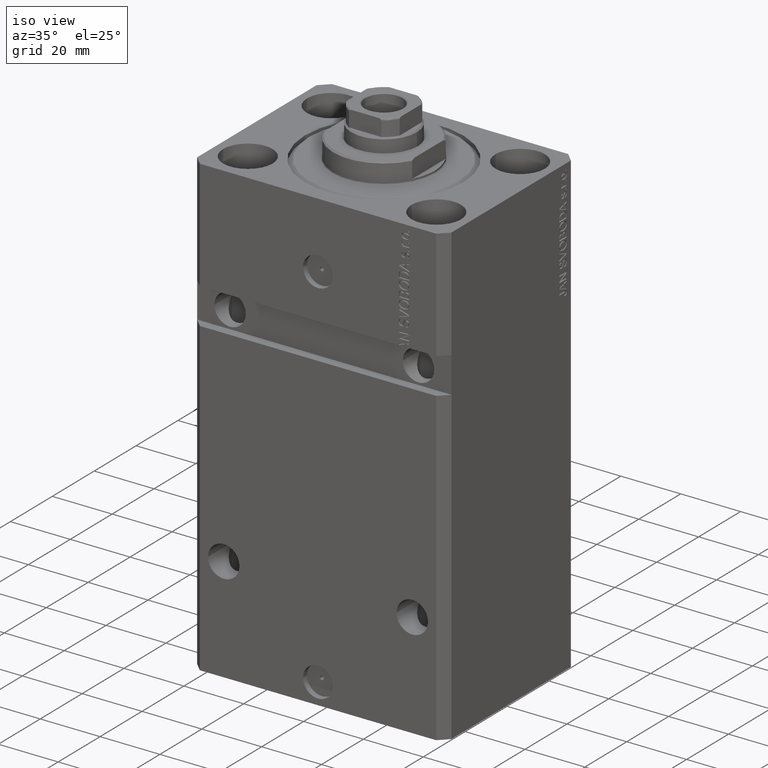
[diagram: clean part render]
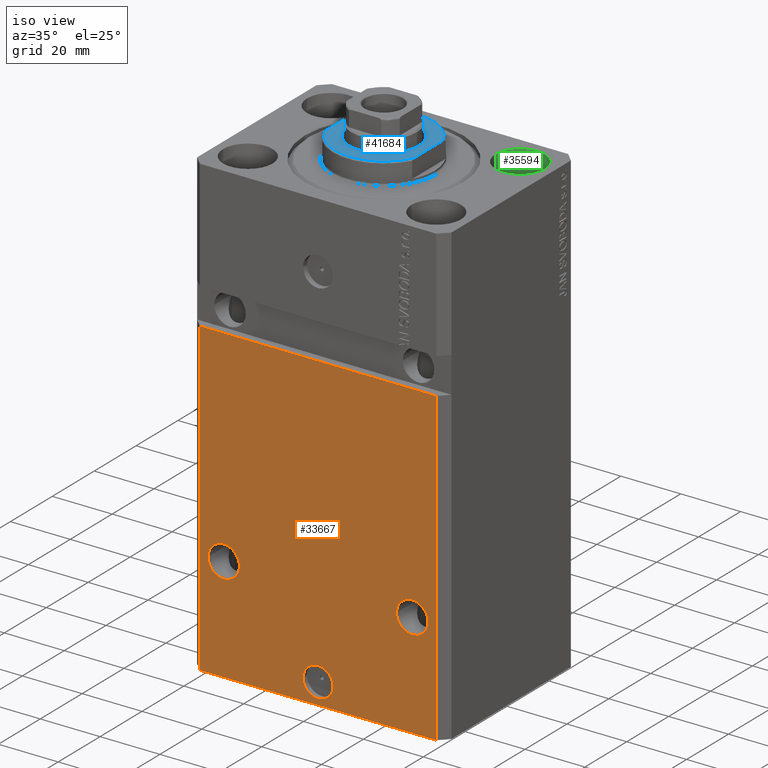
[diagram: same view with three faces highlighted in distinct colors, each labeled with its STEP entity id]
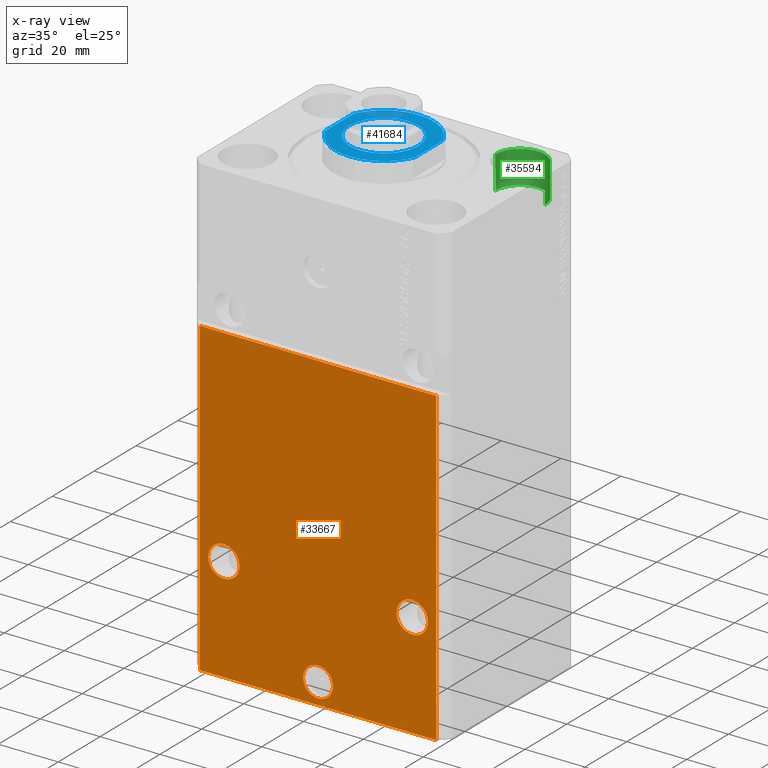
[diagram: x-ray of the same camera — body ghosted, the three highlighted faces saturated]
A machine part, iso view with three faces highlighted in distinct colors.
The next image is the same camera in x-ray (body ghosted, the three faces saturated) — at least one of them is partly hidden behind the body in this view.
Their STEP definitions:

[orange] entity #33667 — the highlighted planar face has unit normal (0, -1, 0).
#100 = CARTESIAN_POINT ( 'NONE',  ( 36.75000000000001421, -31.49999999999999289, -118.0000000000000000 ) ) ;
#493 = VECTOR ( 'NONE', #27653, 1000.000000000000000 ) ;
#895 = EDGE_CURVE ( 'NONE', #39324, #39954, #1374, .T. ) ;
#1374 = CIRCLE ( 'NONE', #35753, 5.249999999999997335 ) ;
#1445 = CARTESIAN_POINT ( 'NONE',  ( 5.000000000000006217, -31.50000000000000000, -146.0000000000000000 ) ) ;
#2423 = DIRECTION ( 'NONE',  ( 1.000000000000000000, 0.000000000000000000, 0.000000000000000000 ) ) ;
#3077 = EDGE_CURVE ( 'NONE', #7344, #43529, #28497, .T. ) ;
#3609 = ORIENTED_EDGE ( 'NONE', *, *, #17200, .F. ) ;
#4207 = DIRECTION ( 'NONE',  ( 1.000000000000000000, 0.000000000000000000, 0.000000000000000000 ) ) ;
#5146 = EDGE_CURVE ( 'NONE', #19466, #10471, #19556, .T. ) ;
#5259 = CARTESIAN_POINT ( 'NONE',  ( -31.50000000000001421, -31.50000000000000711, -118.0000000000000000 ) ) ;
#6255 = CIRCLE ( 'NONE', #8458, 5.000000000000006217 ) ;
#6372 = EDGE_CURVE ( 'NONE', #43529, #7344, #6255, .T. ) ;
#6885 = CIRCLE ( 'NONE', #20069, 5.249999999999997335 ) ;
#7344 = VERTEX_POINT ( 'NONE', #1445 ) ;
#8259 = DIRECTION ( 'NONE',  ( 0.000000000000000000, -0.000000000000000000, -1.000000000000000000 ) ) ;
#8458 = AXIS2_PLACEMENT_3D ( 'NONE', #34861, #14435, #41743 ) ;
#9454 = CARTESIAN_POINT ( 'NONE',  ( -36.75000000000001421, -31.50000000000000711, -118.0000000000000000 ) ) ;
#9516 = CARTESIAN_POINT ( 'NONE',  ( 31.50000000000001421, -31.49999999999999289, -118.0000000000000000 ) ) ;
#9879 = VECTOR ( 'NONE', #40429, 1000.000000000000000 ) ;
#10471 = VERTEX_POINT ( 'NONE', #16000 ) ;
#10872 = LINE ( 'NONE', #28534, #493 ) ;
#11579 = AXIS2_PLACEMENT_3D ( 'NONE', #5259, #33226, #36657 ) ;
#12239 = VECTOR ( 'NONE', #43097, 1000.000000000000000 ) ;
#12425 = CIRCLE ( 'NONE', #21962, 5.249999999999997335 ) ;
#12597 = EDGE_LOOP ( 'NONE', ( #43794, #36372, #17269, #25126 ) ) ;
#12731 = DIRECTION ( 'NONE',  ( 1.000000000000000000, 0.000000000000000000, 0.000000000000000000 ) ) ;
#13061 = EDGE_LOOP ( 'NONE', ( #3609, #34264 ) ) ;
#13882 = EDGE_CURVE ( 'NONE', #15201, #10471, #10872, .T. ) ;
#14339 = CARTESIAN_POINT ( 'NONE',  ( 39.50000000000000711, -31.50000000000000000, -153.0000000000000000 ) ) ;
#14435 = DIRECTION ( 'NONE',  ( 1.176083712526788232E-16, -1.000000000000000000, 0.000000000000000000 ) ) ;
#14650 = EDGE_CURVE ( 'NONE', #35724, #15201, #25887, .T. ) ;
#15201 = VERTEX_POINT ( 'NONE', #40490 ) ;
#15221 = EDGE_CURVE ( 'NONE', #35724, #19466, #44167, .T. ) ;
#15249 = CIRCLE ( 'NONE', #11579, 5.249999999999997335 ) ;
#15271 = EDGE_LOOP ( 'NONE', ( #33795, #22794 ) ) ;
#15515 = DIRECTION ( 'NONE',  ( 1.176083712526788232E-16, -1.000000000000000000, 0.000000000000000000 ) ) ;
#15809 = CARTESIAN_POINT ( 'NONE',  ( -39.50000000000000711, -31.50000000000000000, -153.0000000000000000 ) ) ;
#16000 = CARTESIAN_POINT ( 'NONE',  ( 39.50000000000000000, -31.49999999999999289, -48.99999999999997868 ) ) ;
#16259 = FACE_BOUND ( 'NONE', #15271, .T. ) ;
#17200 = EDGE_CURVE ( 'NONE', #17361, #33575, #15249, .T. ) ;
#17269 = ORIENTED_EDGE ( 'NONE', *, *, #15221, .T. ) ;
#17361 = VERTEX_POINT ( 'NONE', #18446 ) ;
#18446 = CARTESIAN_POINT ( 'NONE',  ( -26.25000000000001776, -31.50000000000000711, -118.0000000000000000 ) ) ;
#18713 = CARTESIAN_POINT ( 'NONE',  ( 26.25000000000001776, -31.49999999999999289, -118.0000000000000000 ) ) ;
#18991 = CARTESIAN_POINT ( 'NONE',  ( -39.50000000000000711, -31.50000000000000000, -153.0000000000000000 ) ) ;
#19466 = VERTEX_POINT ( 'NONE', #14339 ) ;
#19556 = LINE ( 'NONE', #34229, #9879 ) ;
#20069 = AXIS2_PLACEMENT_3D ( 'NONE', #9516, #26735, #2423 ) ;
#20374 = CARTESIAN_POINT ( 'NONE',  ( -39.50000000000000711, -31.50000000000000000, -153.0000000000000000 ) ) ;
#21849 = CARTESIAN_POINT ( 'NONE',  ( 0.000000000000000000, -31.50000000000000000, -146.0000000000000000 ) ) ;
#21962 = AXIS2_PLACEMENT_3D ( 'NONE', #44159, #37710, #26960 ) ;
#22067 = EDGE_CURVE ( 'NONE', #33575, #17361, #12425, .T. ) ;
#22794 = ORIENTED_EDGE ( 'NONE', *, *, #6372, .F. ) ;
#22907 = FACE_BOUND ( 'NONE', #13061, .T. ) ;
#25126 = ORIENTED_EDGE ( 'NONE', *, *, #5146, .T. ) ;
#25572 = EDGE_LOOP ( 'NONE', ( #27676, #43736 ) ) ;
#25622 = DIRECTION ( 'NONE',  ( 1.000000000000000000, 0.000000000000000000, 0.000000000000000000 ) ) ;
#25837 = CARTESIAN_POINT ( 'NONE',  ( 31.50000000000001421, -31.49999999999999289, -118.0000000000000000 ) ) ;
#25887 = LINE ( 'NONE', #18991, #12239 ) ;
#26735 = DIRECTION ( 'NONE',  ( 1.176083712526788232E-16, -1.000000000000000000, 0.000000000000000000 ) ) ;
#26960 = DIRECTION ( 'NONE',  ( -1.000000000000000000, 0.000000000000000000, 0.000000000000000000 ) ) ;
#27031 = AXIS2_PLACEMENT_3D ( 'NONE', #21849, #28064, #4207 ) ;
#27362 = AXIS2_PLACEMENT_3D ( 'NONE', #15809, #36885, #8259 ) ;
#27653 = DIRECTION ( 'NONE',  ( 1.000000000000000000, 1.632680918566406054E-16, 1.632680918566406054E-16 ) ) ;
#27676 = ORIENTED_EDGE ( 'NONE', *, *, #895, .F. ) ;
#28064 = DIRECTION ( 'NONE',  ( 1.176083712526788232E-16, -1.000000000000000000, 0.000000000000000000 ) ) ;
#28497 = CIRCLE ( 'NONE', #27031, 5.000000000000006217 ) ;
#28534 = CARTESIAN_POINT ( 'NONE',  ( -42.50000000000001421, -31.50000000000000711, -48.99999999999999289 ) ) ;
#29808 = FACE_BOUND ( 'NONE', #25572, .T. ) ;
#33226 = DIRECTION ( 'NONE',  ( 1.176083712526788232E-16, -1.000000000000000000, 0.000000000000000000 ) ) ;
#33575 = VERTEX_POINT ( 'NONE', #9454 ) ;
#33667 = ADVANCED_FACE ( 'NONE', ( #16259, #29808, #22907, #40563 ), #44239, .T. ) ;
#33795 = ORIENTED_EDGE ( 'NONE', *, *, #3077, .F. ) ;
#34229 = CARTESIAN_POINT ( 'NONE',  ( 39.50000000000000711, -31.50000000000000000, -153.0000000000000000 ) ) ;
#34264 = ORIENTED_EDGE ( 'NONE', *, *, #22067, .F. ) ;
#34861 = CARTESIAN_POINT ( 'NONE',  ( 0.000000000000000000, -31.50000000000000000, -146.0000000000000000 ) ) ;
#35724 = VERTEX_POINT ( 'NONE', #20374 ) ;
#35753 = AXIS2_PLACEMENT_3D ( 'NONE', #25837, #15515, #25622 ) ;
#36372 = ORIENTED_EDGE ( 'NONE', *, *, #14650, .F. ) ;
#36657 = DIRECTION ( 'NONE',  ( -1.000000000000000000, 0.000000000000000000, 0.000000000000000000 ) ) ;
#36885 = DIRECTION ( 'NONE',  ( 0.000000000000000000, -1.000000000000000000, 0.000000000000000000 ) ) ;
#37710 = DIRECTION ( 'NONE',  ( 1.176083712526788232E-16, -1.000000000000000000, 0.000000000000000000 ) ) ;
#39324 = VERTEX_POINT ( 'NONE', #100 ) ;
#39954 = VERTEX_POINT ( 'NONE', #18713 ) ;
#40124 = EDGE_CURVE ( 'NONE', #39954, #39324, #6885, .T. ) ;
#40429 = DIRECTION ( 'NONE',  ( 0.000000000000000000, 0.000000000000000000, 1.000000000000000000 ) ) ;
#40490 = CARTESIAN_POINT ( 'NONE',  ( -39.50000000000000000, -31.50000000000000711, -48.99999999999999289 ) ) ;
#40563 = FACE_OUTER_BOUND ( 'NONE', #12597, .T. ) ;
#40718 = CARTESIAN_POINT ( 'NONE',  ( -39.50000000000000711, -31.50000000000000000, -153.0000000000000000 ) ) ;
#41743 = DIRECTION ( 'NONE',  ( 1.000000000000000000, 0.000000000000000000, 0.000000000000000000 ) ) ;
#42528 = CARTESIAN_POINT ( 'NONE',  ( -5.000000000000006217, -31.50000000000000000, -146.0000000000000000 ) ) ;
#43097 = DIRECTION ( 'NONE',  ( 0.000000000000000000, 0.000000000000000000, 1.000000000000000000 ) ) ;
#43529 = VERTEX_POINT ( 'NONE', #42528 ) ;
#43736 = ORIENTED_EDGE ( 'NONE', *, *, #40124, .F. ) ;
#43794 = ORIENTED_EDGE ( 'NONE', *, *, #13882, .F. ) ;
#44159 = CARTESIAN_POINT ( 'NONE',  ( -31.50000000000001421, -31.50000000000000711, -118.0000000000000000 ) ) ;
#44167 = LINE ( 'NONE', #40718, #44460 ) ;
#44239 = PLANE ( 'NONE',  #27362 ) ;
#44460 = VECTOR ( 'NONE', #12731, 1000.000000000000000 ) ;

[blue] entity #41684 — the highlighted planar face has unit normal (0, 0, 1).
#1537 = ORIENTED_EDGE ( 'NONE', *, *, #2092, .T. ) ;
#1906 = EDGE_LOOP ( 'NONE', ( #1537, #5012, #23070, #5064 ) ) ;
#1996 = VERTEX_POINT ( 'NONE', #9206 ) ;
#2092 = EDGE_CURVE ( 'NONE', #7758, #33218, #15394, .T. ) ;
#3116 = DIRECTION ( 'NONE',  ( -0.000000000000000000, -0.000000000000000000, 1.000000000000000000 ) ) ;
#4641 = FACE_BOUND ( 'NONE', #15418, .T. ) ;
#4668 = AXIS2_PLACEMENT_3D ( 'NONE', #23817, #37108, #13486 ) ;
#5012 = ORIENTED_EDGE ( 'NONE', *, *, #16821, .T. ) ;
#5064 = ORIENTED_EDGE ( 'NONE', *, *, #10613, .F. ) ;
#5151 = AXIS2_PLACEMENT_3D ( 'NONE', #41976, #34875, #20432 ) ;
#6224 = AXIS2_PLACEMENT_3D ( 'NONE', #15171, #8977, #36486 ) ;
#7006 = DIRECTION ( 'NONE',  ( 0.000000000000000000, -1.000000000000000000, -0.000000000000000000 ) ) ;
#7232 = CARTESIAN_POINT ( 'NONE',  ( 11.50000000000001776, 1.408343819019458543E-15, -7.000000000000000000 ) ) ;
#7447 = LINE ( 'NONE', #11112, #25514 ) ;
#7758 = VERTEX_POINT ( 'NONE', #30036 ) ;
#8977 = DIRECTION ( 'NONE',  ( 0.000000000000000000, 0.000000000000000000, -1.000000000000000000 ) ) ;
#9206 = CARTESIAN_POINT ( 'NONE',  ( 14.99999999999999645, -6.873863542433817031, -7.000000000000000000 ) ) ;
#10613 = EDGE_CURVE ( 'NONE', #7758, #15186, #38677, .T. ) ;
#11112 = CARTESIAN_POINT ( 'NONE',  ( 15.00000000000000000, -42.42640687119285303, -7.000000000000000000 ) ) ;
#11684 = ORIENTED_EDGE ( 'NONE', *, *, #28495, .T. ) ;
#13486 = DIRECTION ( 'NONE',  ( -1.000000000000000000, 0.000000000000000000, 0.000000000000000000 ) ) ;
#13526 = CIRCLE ( 'NONE', #23056, 16.50000000000002132 ) ;
#13655 = VERTEX_POINT ( 'NONE', #38460 ) ;
#15171 = CARTESIAN_POINT ( 'NONE',  ( 0.000000000000000000, 0.000000000000000000, -7.000000000000000000 ) ) ;
#15186 = VERTEX_POINT ( 'NONE', #34058 ) ;
#15394 = CIRCLE ( 'NONE', #5151, 16.50000000000002132 ) ;
#15418 = EDGE_LOOP ( 'NONE', ( #25885, #11684 ) ) ;
#16821 = EDGE_CURVE ( 'NONE', #33218, #1996, #7447, .T. ) ;
#17072 = CARTESIAN_POINT ( 'NONE',  ( 14.99999999999999645, 6.873863542433817031, -7.000000000000000000 ) ) ;
#18473 = DIRECTION ( 'NONE',  ( -0.000000000000000000, -1.000000000000000000, -0.000000000000000000 ) ) ;
#18495 = VERTEX_POINT ( 'NONE', #7232 ) ;
#18608 = FACE_OUTER_BOUND ( 'NONE', #1906, .T. ) ;
#20432 = DIRECTION ( 'NONE',  ( -1.000000000000000000, 0.000000000000000000, 0.000000000000000000 ) ) ;
#20755 = CARTESIAN_POINT ( 'NONE',  ( 0.000000000000000000, 0.000000000000000000, -7.000000000000000000 ) ) ;
#21352 = DIRECTION ( 'NONE',  ( -1.000000000000000000, 0.000000000000000000, 0.000000000000000000 ) ) ;
#23056 = AXIS2_PLACEMENT_3D ( 'NONE', #34433, #41550, #21352 ) ;
#23070 = ORIENTED_EDGE ( 'NONE', *, *, #37274, .T. ) ;
#23206 = VECTOR ( 'NONE', #18473, 1000.000000000000000 ) ;
#23817 = CARTESIAN_POINT ( 'NONE',  ( 0.000000000000000000, 0.000000000000000000, -7.000000000000000000 ) ) ;
#25514 = VECTOR ( 'NONE', #7006, 1000.000000000000000 ) ;
#25600 = CARTESIAN_POINT ( 'NONE',  ( -15.00000000000000000, -42.42640687119285303, -7.000000000000000000 ) ) ;
#25731 = AXIS2_PLACEMENT_3D ( 'NONE', #20755, #3116, #34737 ) ;
#25885 = ORIENTED_EDGE ( 'NONE', *, *, #35679, .T. ) ;
#28495 = EDGE_CURVE ( 'NONE', #18495, #13655, #35240, .T. ) ;
#30036 = CARTESIAN_POINT ( 'NONE',  ( -14.99999999999999645, 6.873863542433817031, -7.000000000000000000 ) ) ;
#32606 = PLANE ( 'NONE',  #6224 ) ;
#33218 = VERTEX_POINT ( 'NONE', #17072 ) ;
#34058 = CARTESIAN_POINT ( 'NONE',  ( -14.99999999999999645, -6.873863542433817031, -7.000000000000000000 ) ) ;
#34433 = CARTESIAN_POINT ( 'NONE',  ( 0.000000000000000000, 0.000000000000000000, -7.000000000000000000 ) ) ;
#34737 = DIRECTION ( 'NONE',  ( -1.000000000000000000, 0.000000000000000000, 0.000000000000000000 ) ) ;
#34875 = DIRECTION ( 'NONE',  ( 0.000000000000000000, 0.000000000000000000, -1.000000000000000000 ) ) ;
#35240 = CIRCLE ( 'NONE', #25731, 11.50000000000001776 ) ;
#35679 = EDGE_CURVE ( 'NONE', #13655, #18495, #44212, .T. ) ;
#36486 = DIRECTION ( 'NONE',  ( -1.000000000000000000, 0.000000000000000000, -0.000000000000000000 ) ) ;
#37108 = DIRECTION ( 'NONE',  ( -0.000000000000000000, -0.000000000000000000, 1.000000000000000000 ) ) ;
#37274 = EDGE_CURVE ( 'NONE', #1996, #15186, #13526, .T. ) ;
#38460 = CARTESIAN_POINT ( 'NONE',  ( -11.50000000000001776, 0.000000000000000000, -7.000000000000000000 ) ) ;
#38677 = LINE ( 'NONE', #25600, #23206 ) ;
#41550 = DIRECTION ( 'NONE',  ( 0.000000000000000000, 0.000000000000000000, -1.000000000000000000 ) ) ;
#41684 = ADVANCED_FACE ( 'NONE', ( #4641, #18608 ), #32606, .T. ) ;
#41976 = CARTESIAN_POINT ( 'NONE',  ( 0.000000000000000000, 0.000000000000000000, -7.000000000000000000 ) ) ;
#44212 = CIRCLE ( 'NONE', #4668, 11.50000000000001776 ) ;

[green] entity #35594 — the highlighted cylindrical surface (edge-blend (fillet) strip) has radius 8.25 mm, axis along (0, 0, 1).
#1428 = CARTESIAN_POINT ( 'NONE',  ( 23.25000000000000355, 20.00000000000001066, -11.00000000000000000 ) ) ;
#5045 = DIRECTION ( 'NONE',  ( -0.000000000000000000, -0.000000000000000000, 1.000000000000000000 ) ) ;
#5447 = AXIS2_PLACEMENT_3D ( 'NONE', #15842, #25502, #33050 ) ;
#8996 = ORIENTED_EDGE ( 'NONE', *, *, #19346, .F. ) ;
#9065 = ORIENTED_EDGE ( 'NONE', *, *, #40629, .T. ) ;
#9877 = VERTEX_POINT ( 'NONE', #11133 ) ;
#10194 = DIRECTION ( 'NONE',  ( -0.000000000000000000, -0.000000000000000000, 1.000000000000000000 ) ) ;
#10433 = LINE ( 'NONE', #37719, #22297 ) ;
#11133 = CARTESIAN_POINT ( 'NONE',  ( 39.74999999999999289, 20.00000000000001066, 0.000000000000000000 ) ) ;
#15125 = CYLINDRICAL_SURFACE ( 'NONE', #26637, 8.249999999999992895 ) ;
#15842 = CARTESIAN_POINT ( 'NONE',  ( 31.50000000000000000, 20.00000000000001066, 0.000000000000000000 ) ) ;
#17902 = CIRCLE ( 'NONE', #5447, 8.249999999999992895 ) ;
#19346 = EDGE_CURVE ( 'NONE', #23918, #41665, #44623, .T. ) ;
#19827 = CARTESIAN_POINT ( 'NONE',  ( 23.25000000000000355, 20.00000000000001066, -11.00000000000000000 ) ) ;
#22125 = VERTEX_POINT ( 'NONE', #23511 ) ;
#22234 = DIRECTION ( 'NONE',  ( 1.000000000000000000, 0.000000000000000000, 0.000000000000000000 ) ) ;
#22297 = VECTOR ( 'NONE', #27659, 1000.000000000000000 ) ;
#22684 = FACE_OUTER_BOUND ( 'NONE', #35639, .T. ) ;
#23164 = ORIENTED_EDGE ( 'NONE', *, *, #33283, .F. ) ;
#23511 = CARTESIAN_POINT ( 'NONE',  ( 23.25000000000000355, 20.00000000000001066, 0.000000000000000000 ) ) ;
#23918 = VERTEX_POINT ( 'NONE', #38726 ) ;
#25502 = DIRECTION ( 'NONE',  ( 0.000000000000000000, 0.000000000000000000, 1.000000000000000000 ) ) ;
#26637 = AXIS2_PLACEMENT_3D ( 'NONE', #40107, #5045, #22234 ) ;
#27659 = DIRECTION ( 'NONE',  ( -0.000000000000000000, -0.000000000000000000, 1.000000000000000000 ) ) ;
#30430 = CARTESIAN_POINT ( 'NONE',  ( 31.50000000000000000, 20.00000000000001066, -11.00000000000000000 ) ) ;
#33050 = DIRECTION ( 'NONE',  ( 1.000000000000000000, 0.000000000000000000, 0.000000000000000000 ) ) ;
#33283 = EDGE_CURVE ( 'NONE', #41665, #22125, #44371, .T. ) ;
#35594 = ADVANCED_FACE ( 'NONE', ( #22684 ), #15125, .F. ) ;
#35639 = EDGE_LOOP ( 'NONE', ( #23164, #8996, #38429, #9065 ) ) ;
#36399 = DIRECTION ( 'NONE',  ( 0.000000000000000000, 0.000000000000000000, 1.000000000000000000 ) ) ;
#37270 = AXIS2_PLACEMENT_3D ( 'NONE', #30430, #36399, #44420 ) ;
#37719 = CARTESIAN_POINT ( 'NONE',  ( 39.74999999999999289, 20.00000000000001066, -11.00000000000000000 ) ) ;
#38429 = ORIENTED_EDGE ( 'NONE', *, *, #41174, .T. ) ;
#38726 = CARTESIAN_POINT ( 'NONE',  ( 39.74999999999999289, 20.00000000000001066, -11.00000000000000000 ) ) ;
#40107 = CARTESIAN_POINT ( 'NONE',  ( 31.50000000000000000, 20.00000000000001066, -11.00000000000000000 ) ) ;
#40629 = EDGE_CURVE ( 'NONE', #9877, #22125, #17902, .T. ) ;
#41174 = EDGE_CURVE ( 'NONE', #23918, #9877, #10433, .T. ) ;
#41665 = VERTEX_POINT ( 'NONE', #1428 ) ;
#42677 = VECTOR ( 'NONE', #10194, 1000.000000000000000 ) ;
#44371 = LINE ( 'NONE', #19827, #42677 ) ;
#44420 = DIRECTION ( 'NONE',  ( 1.000000000000000000, 0.000000000000000000, 0.000000000000000000 ) ) ;
#44623 = CIRCLE ( 'NONE', #37270, 8.249999999999992895 ) ;